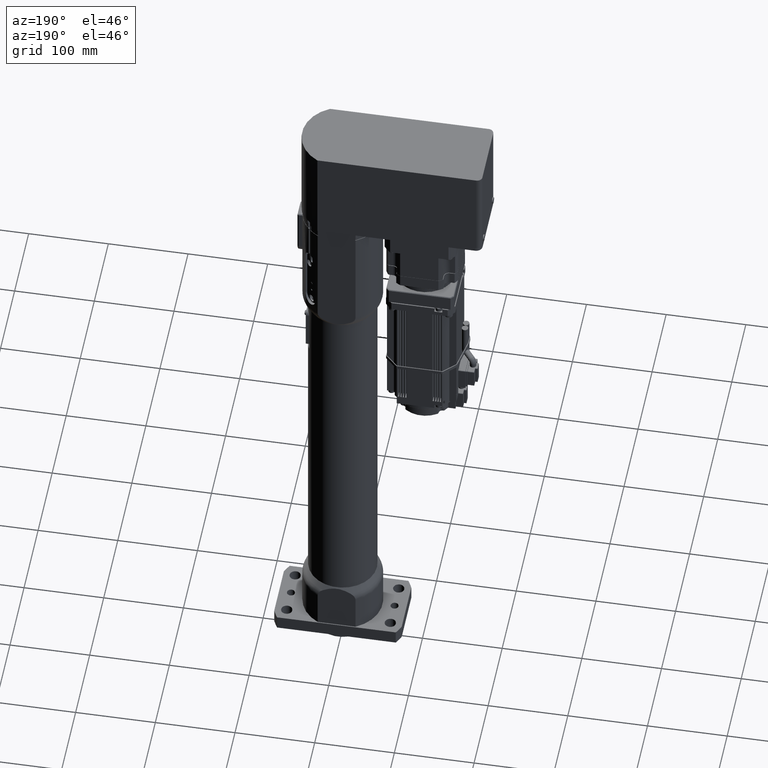
[diagram: clean part render]
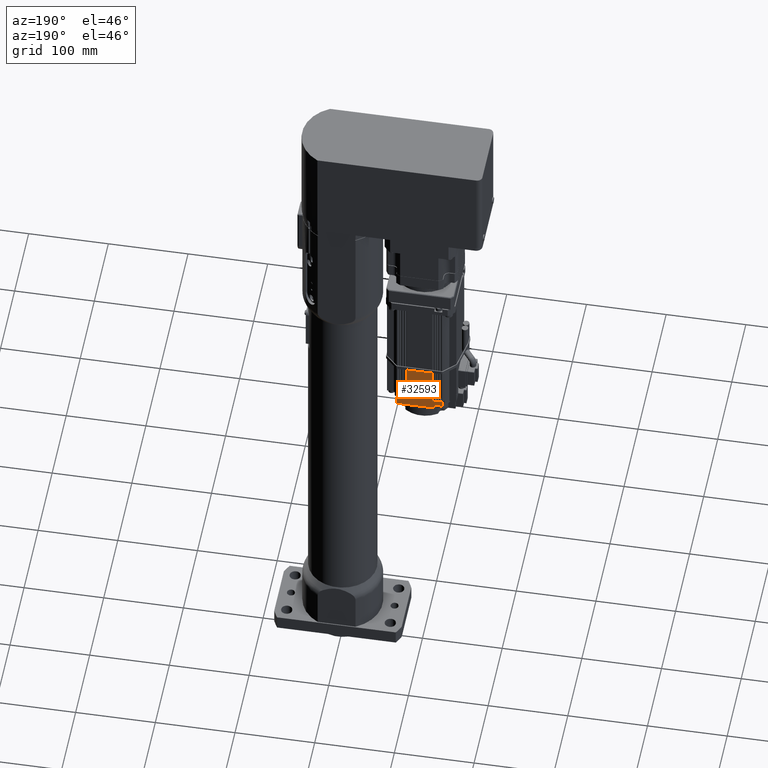
[diagram: same view with one face highlighted and labeled with its STEP entity id]
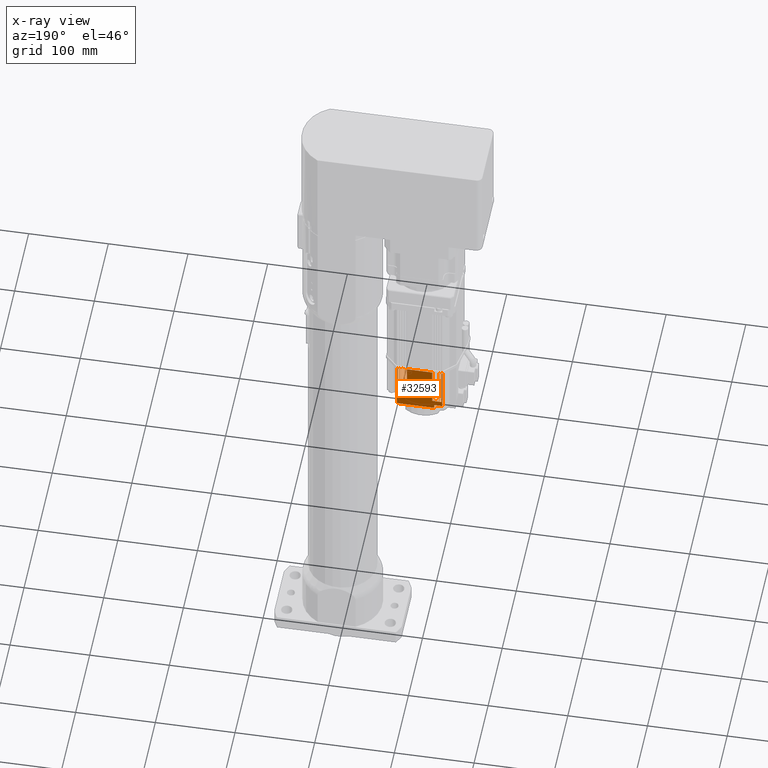
[diagram: x-ray of the same camera — body ghosted, the highlighted face saturated]
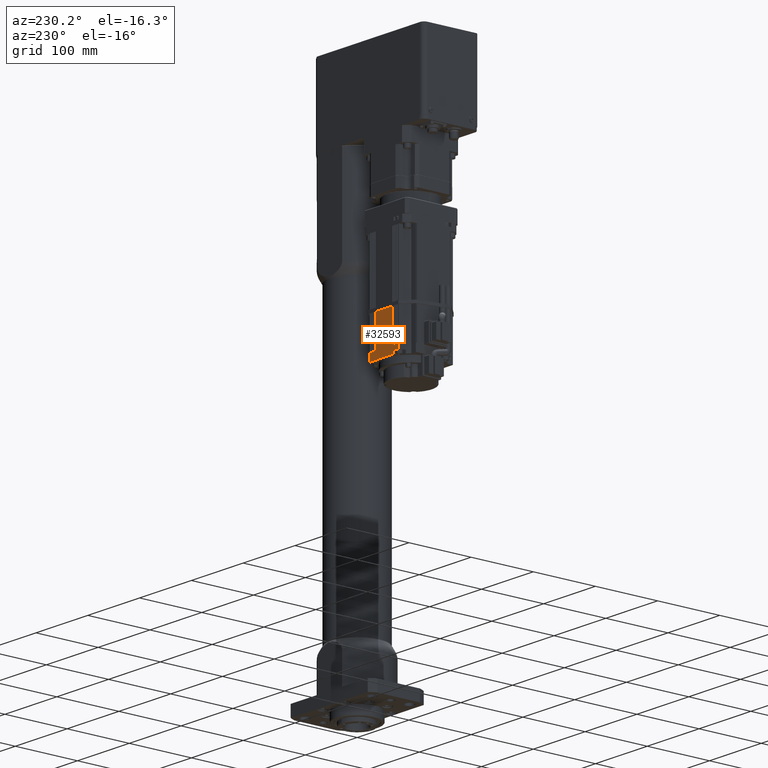
[diagram: same view with one face highlighted and labeled with its STEP entity id]
A machine part, auxiliary view. The second image highlights one B-rep face of the part: STEP entity #32593.
The next image is the same camera in x-ray: the body ghosted, the highlighted face saturated — about 0% of this face is hidden behind the body in this view.
A second angle (auxiliary view) of the same face is appended — the face is thin or edge-on in the first view.
In plain terms, the highlighted planar face has unit normal (0, 1, -0).
Its self-contained STEP definition (entity closure, byte-faithful):
#741=PLANE('',#34660);
#2211=FACE_OUTER_BOUND('',#4034,.T.);
#4034=EDGE_LOOP('',(#21815,#21816,#21817,#21818,#21819,#21820,#21821,#21822,
#21823,#21824,#21825,#21826,#21827,#21828,#21829,#21830,#21831,#21832,#21833,
#21834,#21835,#21836,#21837,#21838,#21839,#21840,#21841,#21842,#21843,#21844,
#21845,#21846,#21847,#21848,#21849,#21850,#21851,#21852));
#7829=LINE('',#49164,#10525);
#7830=LINE('',#49165,#10526);
#7831=LINE('',#49166,#10527);
#7832=LINE('',#49167,#10528);
#7833=LINE('',#49168,#10529);
#7834=LINE('',#49169,#10530);
#7835=LINE('',#49170,#10531);
#7836=LINE('',#49171,#10532);
#7837=LINE('',#49173,#10533);
#7873=LINE('',#49266,#10569);
#7874=LINE('',#49269,#10570);
#7875=LINE('',#49271,#10571);
#7876=LINE('',#49272,#10572);
#7877=LINE('',#49274,#10573);
#7878=LINE('',#49276,#10574);
#7879=LINE('',#49278,#10575);
#7880=LINE('',#49279,#10576);
#7881=LINE('',#49281,#10577);
#7882=LINE('',#49283,#10578);
#7883=LINE('',#49284,#10579);
#7884=LINE('',#49286,#10580);
#7885=LINE('',#49288,#10581);
#7886=LINE('',#49289,#10582);
#7887=LINE('',#49291,#10583);
#7888=LINE('',#49293,#10584);
#7889=LINE('',#49294,#10585);
#7890=LINE('',#49296,#10586);
#7891=LINE('',#49298,#10587);
#7892=LINE('',#49299,#10588);
#7893=LINE('',#49301,#10589);
#7894=LINE('',#49303,#10590);
#7895=LINE('',#49304,#10591);
#7896=LINE('',#49306,#10592);
#7897=LINE('',#49308,#10593);
#7898=LINE('',#49309,#10594);
#7899=LINE('',#49311,#10595);
#7900=LINE('',#49313,#10596);
#7901=LINE('',#49314,#10597);
#10525=VECTOR('',#38875,10.);
#10526=VECTOR('',#38876,10.);
#10527=VECTOR('',#38877,10.);
#10528=VECTOR('',#38878,10.);
#10529=VECTOR('',#38879,10.);
#10530=VECTOR('',#38880,10.);
#10531=VECTOR('',#38881,10.);
#10532=VECTOR('',#38882,10.);
#10533=VECTOR('',#38883,10.);
#10569=VECTOR('',#38935,10.);
#10570=VECTOR('',#38938,10.);
#10571=VECTOR('',#38939,10.);
#10572=VECTOR('',#38940,10.);
#10573=VECTOR('',#38941,10.);
#10574=VECTOR('',#38942,10.);
#10575=VECTOR('',#38943,10.);
#10576=VECTOR('',#38944,10.);
#10577=VECTOR('',#38945,10.);
#10578=VECTOR('',#38946,10.);
#10579=VECTOR('',#38947,10.);
#10580=VECTOR('',#38948,10.);
#10581=VECTOR('',#38949,10.);
#10582=VECTOR('',#38950,10.);
#10583=VECTOR('',#38951,10.);
#10584=VECTOR('',#38952,10.);
#10585=VECTOR('',#38953,10.);
#10586=VECTOR('',#38954,10.);
#10587=VECTOR('',#38955,10.);
#10588=VECTOR('',#38956,10.);
#10589=VECTOR('',#38957,10.);
#10590=VECTOR('',#38958,10.);
#10591=VECTOR('',#38959,10.);
#10592=VECTOR('',#38960,10.);
#10593=VECTOR('',#38961,10.);
#10594=VECTOR('',#38962,10.);
#10595=VECTOR('',#38963,10.);
#10596=VECTOR('',#38964,10.);
#10597=VECTOR('',#38965,10.);
#13146=VERTEX_POINT('',#48683);
#13148=VERTEX_POINT('',#48687);
#13150=VERTEX_POINT('',#48692);
#13152=VERTEX_POINT('',#48696);
#13154=VERTEX_POINT('',#48701);
#13156=VERTEX_POINT('',#48705);
#13158=VERTEX_POINT('',#48710);
#13160=VERTEX_POINT('',#48714);
#13162=VERTEX_POINT('',#48719);
#13164=VERTEX_POINT('',#48723);
#13166=VERTEX_POINT('',#48728);
#13168=VERTEX_POINT('',#48732);
#13170=VERTEX_POINT('',#48737);
#13172=VERTEX_POINT('',#48741);
#13173=VERTEX_POINT('',#48745);
#13175=VERTEX_POINT('',#48748);
#13321=VERTEX_POINT('',#49162);
#13322=VERTEX_POINT('',#49172);
#13353=VERTEX_POINT('',#49264);
#13354=VERTEX_POINT('',#49268);
#13355=VERTEX_POINT('',#49270);
#13356=VERTEX_POINT('',#49273);
#13357=VERTEX_POINT('',#49275);
#13358=VERTEX_POINT('',#49277);
#13359=VERTEX_POINT('',#49280);
#13360=VERTEX_POINT('',#49282);
#13361=VERTEX_POINT('',#49285);
#13362=VERTEX_POINT('',#49287);
#13363=VERTEX_POINT('',#49290);
#13364=VERTEX_POINT('',#49292);
#13365=VERTEX_POINT('',#49295);
#13366=VERTEX_POINT('',#49297);
#13367=VERTEX_POINT('',#49300);
#13368=VERTEX_POINT('',#49302);
#13369=VERTEX_POINT('',#49305);
#13370=VERTEX_POINT('',#49307);
#13371=VERTEX_POINT('',#49310);
#13372=VERTEX_POINT('',#49312);
#16584=EDGE_CURVE('',#13175,#13321,#7829,.T.);
#16585=EDGE_CURVE('',#13170,#13173,#7830,.T.);
#16586=EDGE_CURVE('',#13166,#13172,#7831,.T.);
#16587=EDGE_CURVE('',#13162,#13168,#7832,.T.);
#16588=EDGE_CURVE('',#13158,#13164,#7833,.T.);
#16589=EDGE_CURVE('',#13154,#13160,#7834,.T.);
#16590=EDGE_CURVE('',#13150,#13156,#7835,.T.);
#16591=EDGE_CURVE('',#13146,#13152,#7836,.T.);
#16592=EDGE_CURVE('',#13322,#13148,#7837,.T.);
#16635=EDGE_CURVE('',#13321,#13353,#7873,.T.);
#16636=EDGE_CURVE('',#13354,#13173,#7874,.T.);
#16637=EDGE_CURVE('',#13354,#13355,#7875,.T.);
#16638=EDGE_CURVE('',#13175,#13355,#7876,.T.);
#16639=EDGE_CURVE('',#13356,#13353,#7877,.T.);
#16640=EDGE_CURVE('',#13356,#13357,#7878,.T.);
#16641=EDGE_CURVE('',#13357,#13358,#7879,.T.);
#16642=EDGE_CURVE('',#13358,#13322,#7880,.T.);
#16643=EDGE_CURVE('',#13359,#13148,#7881,.T.);
#16644=EDGE_CURVE('',#13359,#13360,#7882,.T.);
#16645=EDGE_CURVE('',#13146,#13360,#7883,.T.);
#16646=EDGE_CURVE('',#13361,#13152,#7884,.T.);
#16647=EDGE_CURVE('',#13361,#13362,#7885,.T.);
#16648=EDGE_CURVE('',#13150,#13362,#7886,.T.);
#16649=EDGE_CURVE('',#13363,#13156,#7887,.T.);
#16650=EDGE_CURVE('',#13363,#13364,#7888,.T.);
#16651=EDGE_CURVE('',#13154,#13364,#7889,.T.);
#16652=EDGE_CURVE('',#13365,#13160,#7890,.T.);
#16653=EDGE_CURVE('',#13365,#13366,#7891,.T.);
#16654=EDGE_CURVE('',#13158,#13366,#7892,.T.);
#16655=EDGE_CURVE('',#13367,#13164,#7893,.T.);
#16656=EDGE_CURVE('',#13367,#13368,#7894,.T.);
#16657=EDGE_CURVE('',#13162,#13368,#7895,.T.);
#16658=EDGE_CURVE('',#13369,#13168,#7896,.T.);
#16659=EDGE_CURVE('',#13369,#13370,#7897,.T.);
#16660=EDGE_CURVE('',#13166,#13370,#7898,.T.);
#16661=EDGE_CURVE('',#13371,#13172,#7899,.T.);
#16662=EDGE_CURVE('',#13371,#13372,#7900,.T.);
#16663=EDGE_CURVE('',#13170,#13372,#7901,.T.);
#21815=ORIENTED_EDGE('',*,*,#16585,.T.);
#21816=ORIENTED_EDGE('',*,*,#16636,.F.);
#21817=ORIENTED_EDGE('',*,*,#16637,.T.);
#21818=ORIENTED_EDGE('',*,*,#16638,.F.);
#21819=ORIENTED_EDGE('',*,*,#16584,.T.);
#21820=ORIENTED_EDGE('',*,*,#16635,.T.);
#21821=ORIENTED_EDGE('',*,*,#16639,.F.);
#21822=ORIENTED_EDGE('',*,*,#16640,.T.);
#21823=ORIENTED_EDGE('',*,*,#16641,.T.);
#21824=ORIENTED_EDGE('',*,*,#16642,.T.);
#21825=ORIENTED_EDGE('',*,*,#16592,.T.);
#21826=ORIENTED_EDGE('',*,*,#16643,.F.);
#21827=ORIENTED_EDGE('',*,*,#16644,.T.);
#21828=ORIENTED_EDGE('',*,*,#16645,.F.);
#21829=ORIENTED_EDGE('',*,*,#16591,.T.);
#21830=ORIENTED_EDGE('',*,*,#16646,.F.);
#21831=ORIENTED_EDGE('',*,*,#16647,.T.);
#21832=ORIENTED_EDGE('',*,*,#16648,.F.);
#21833=ORIENTED_EDGE('',*,*,#16590,.T.);
#21834=ORIENTED_EDGE('',*,*,#16649,.F.);
#21835=ORIENTED_EDGE('',*,*,#16650,.T.);
#21836=ORIENTED_EDGE('',*,*,#16651,.F.);
#21837=ORIENTED_EDGE('',*,*,#16589,.T.);
#21838=ORIENTED_EDGE('',*,*,#16652,.F.);
#21839=ORIENTED_EDGE('',*,*,#16653,.T.);
#21840=ORIENTED_EDGE('',*,*,#16654,.F.);
#21841=ORIENTED_EDGE('',*,*,#16588,.T.);
#21842=ORIENTED_EDGE('',*,*,#16655,.F.);
#21843=ORIENTED_EDGE('',*,*,#16656,.T.);
#21844=ORIENTED_EDGE('',*,*,#16657,.F.);
#21845=ORIENTED_EDGE('',*,*,#16587,.T.);
#21846=ORIENTED_EDGE('',*,*,#16658,.F.);
#21847=ORIENTED_EDGE('',*,*,#16659,.T.);
#21848=ORIENTED_EDGE('',*,*,#16660,.F.);
#21849=ORIENTED_EDGE('',*,*,#16586,.T.);
#21850=ORIENTED_EDGE('',*,*,#16661,.F.);
#21851=ORIENTED_EDGE('',*,*,#16662,.T.);
#21852=ORIENTED_EDGE('',*,*,#16663,.F.);
#32593=ADVANCED_FACE('',(#2211),#741,.T.);
#34660=AXIS2_PLACEMENT_3D('',#49267,#38936,#38937);
#38875=DIRECTION('',(1.,-2.39794757605666E-14,-5.4831952850511E-14));
#38876=DIRECTION('',(1.,-2.39794757605666E-14,-5.4831952850511E-14));
#38877=DIRECTION('',(1.,-2.39794757605666E-14,-5.4831952850511E-14));
#38878=DIRECTION('',(1.,-2.39794757605666E-14,-5.4831952850511E-14));
#38879=DIRECTION('',(1.,-2.39794757605666E-14,-5.4831952850511E-14));
#38880=DIRECTION('',(1.,-2.39794757605666E-14,-5.4831952850511E-14));
#38881=DIRECTION('',(1.,-2.39794757605666E-14,-5.4831952850511E-14));
#38882=DIRECTION('',(1.,-2.39794757605666E-14,-5.4831952850511E-14));
#38883=DIRECTION('',(1.,-2.39794757605666E-14,-5.4831952850511E-14));
#38935=DIRECTION('',(-5.48319528505112E-14,-1.00722983923794E-14,-1.));
#38936=DIRECTION('center_axis',(2.39794757605661E-14,1.,-1.00722983923807E-14));
#38937=DIRECTION('ref_axis',(1.,-2.39794757605666E-14,-5.4831952850511E-14));
#38938=DIRECTION('',(5.48319528505112E-14,1.00722983923794E-14,1.));
#38939=DIRECTION('',(1.,-2.39794757605666E-14,-5.4831952850511E-14));
#38940=DIRECTION('',(-5.50049746205827E-14,-1.00722983923794E-14,-1.));
#38941=DIRECTION('',(1.,-2.39794757605666E-14,-5.4831952850511E-14));
#38942=DIRECTION('',(5.48319528505112E-14,1.00722983923794E-14,1.));
#38943=DIRECTION('',(-1.,2.39794757605666E-14,5.4831952850511E-14));
#38944=DIRECTION('',(5.48319528505112E-14,1.00722983923794E-14,1.));
#38945=DIRECTION('',(5.48752082930291E-14,1.00722983923794E-14,1.));
#38946=DIRECTION('',(1.,-2.39794757605666E-14,-5.4831952850511E-14));
#38947=DIRECTION('',(-5.48896267738684E-14,-1.00722983923794E-14,-1.));
#38948=DIRECTION('',(5.47886974079934E-14,1.00722983923794E-14,1.));
#38949=DIRECTION('',(1.,-2.39794757605666E-14,-5.4831952850511E-14));
#38950=DIRECTION('',(-5.48607898121898E-14,-1.00722983923794E-14,-1.));
#38951=DIRECTION('',(5.44282353870112E-14,1.00722983923794E-14,1.));
#38952=DIRECTION('',(1.,-2.39794757605666E-14,-5.4831952850511E-14));
#38953=DIRECTION('',(-5.44570723486897E-14,-1.00722983923794E-14,-1.));
#38954=DIRECTION('',(5.4572420195404E-14,1.00722983923794E-14,1.));
#38955=DIRECTION('',(1.,-2.39794757605666E-14,-5.4831952850511E-14));
#38956=DIRECTION('',(-5.47166050037969E-14,-1.00722983923794E-14,-1.));
#38957=DIRECTION('',(5.48896267738684E-14,1.00722983923794E-14,1.));
#38958=DIRECTION('',(1.,-2.39794757605666E-14,-5.4831952850511E-14));
#38959=DIRECTION('',(-5.49473006972255E-14,-1.00722983923794E-14,-1.));
#38960=DIRECTION('',(5.53510181607256E-14,1.00722983923794E-14,1.));
#38961=DIRECTION('',(1.,-2.39794757605666E-14,-5.4831952850511E-14));
#38962=DIRECTION('',(-5.53510181607256E-14,-1.00722983923794E-14,-1.));
#38963=DIRECTION('',(5.48896267738684E-14,1.00722983923794E-14,1.));
#38964=DIRECTION('',(1.,-2.39794757605666E-14,-5.4831952850511E-14));
#38965=DIRECTION('',(-5.48896267738684E-14,-1.00722983923794E-14,-1.));
#48683=CARTESIAN_POINT('',(-128.896933041038,43.4999999999771,487.000000000005));
#48687=CARTESIAN_POINT('',(-131.596933041038,43.4999999999771,487.000000000005));
#48692=CARTESIAN_POINT('',(-125.896933041038,43.499999999977,487.000000000005));
#48696=CARTESIAN_POINT('',(-128.596933041038,43.4999999999771,487.000000000005));
#48701=CARTESIAN_POINT('',(-122.896933041038,43.4999999999769,487.000000000004));
#48705=CARTESIAN_POINT('',(-125.596933041038,43.499999999977,487.000000000005));
#48710=CARTESIAN_POINT('',(-119.896933041038,43.4999999999769,487.000000000004));
#48714=CARTESIAN_POINT('',(-122.596933041038,43.4999999999769,487.000000000004));
#48719=CARTESIAN_POINT('',(-85.3969330410377,43.499999999976,487.000000000002));
#48723=CARTESIAN_POINT('',(-88.0969330410377,43.4999999999761,487.000000000003));
#48728=CARTESIAN_POINT('',(-82.3969330410377,43.499999999976,487.000000000002));
#48732=CARTESIAN_POINT('',(-85.0969330410377,43.499999999976,487.000000000002));
#48737=CARTESIAN_POINT('',(-79.3969330410377,43.4999999999759,487.000000000002));
#48741=CARTESIAN_POINT('',(-82.0969330410377,43.499999999976,487.000000000002));
#48745=CARTESIAN_POINT('',(-79.0969330410377,43.4999999999759,487.000000000002));
#48748=CARTESIAN_POINT('',(-76.3969330410377,43.4999999999758,487.000000000002));
#49162=CARTESIAN_POINT('',(-75.4969330410377,43.4999999999758,487.000000000002));
#49164=CARTESIAN_POINT('',(-123.63035301562,43.4999999999769,487.000000000004));
#49165=CARTESIAN_POINT('',(-123.63035301562,43.4999999999769,487.000000000004));
#49166=CARTESIAN_POINT('',(-123.63035301562,43.4999999999769,487.000000000004));
#49167=CARTESIAN_POINT('',(-123.63035301562,43.4999999999769,487.000000000004));
#49168=CARTESIAN_POINT('',(-123.63035301562,43.4999999999769,487.000000000004));
#49169=CARTESIAN_POINT('',(-123.63035301562,43.4999999999769,487.000000000004));
#49170=CARTESIAN_POINT('',(-123.63035301562,43.4999999999769,487.000000000004));
#49171=CARTESIAN_POINT('',(-123.63035301562,43.4999999999769,487.000000000004));
#49172=CARTESIAN_POINT('',(-132.496933041038,43.4999999999772,487.000000000005));
#49173=CARTESIAN_POINT('',(-123.63035301562,43.4999999999769,487.000000000004));
#49264=CARTESIAN_POINT('',(-75.4969330410411,43.4999999999752,424.500000000002));
#49266=CARTESIAN_POINT('',(-75.4969330410363,43.4999999999761,513.000000000002));
#49267=CARTESIAN_POINT('Origin',(-139.263772990196,43.4999999999785,601.500000000005));
#49268=CARTESIAN_POINT('',(-79.0969330410404,43.4999999999754,436.500000000002));
#49269=CARTESIAN_POINT('',(-79.0969330410317,43.499999999977,596.000000000002));
#49270=CARTESIAN_POINT('',(-76.3969330410405,43.4999999999753,436.500000000002));
#49271=CARTESIAN_POINT('',(-108.880353015623,43.4999999999761,436.500000000004));
#49272=CARTESIAN_POINT('',(-76.3969330410359,43.4999999999761,519.000000000002));
#49273=CARTESIAN_POINT('',(-122.496933041041,43.4999999999763,424.500000000004));
#49274=CARTESIAN_POINT('',(-139.263772990206,43.4999999999767,424.500000000005));
#49275=CARTESIAN_POINT('',(-122.496933041041,43.4999999999764,429.500000000004));
#49276=CARTESIAN_POINT('',(-122.496933041036,43.4999999999772,513.000000000004));
#49277=CARTESIAN_POINT('',(-132.496933041041,43.4999999999766,429.500000000005));
#49278=CARTESIAN_POINT('',(-133.76680260941,43.4999999999766,429.500000000005));
#49279=CARTESIAN_POINT('',(-132.496933041036,43.4999999999774,513.000000000005));
#49280=CARTESIAN_POINT('',(-131.59693304104,43.4999999999766,436.500000000005));
#49281=CARTESIAN_POINT('',(-131.596933041032,43.4999999999782,596.000000000005));
#49282=CARTESIAN_POINT('',(-128.89693304104,43.4999999999766,436.500000000005));
#49283=CARTESIAN_POINT('',(-135.130353015623,43.4999999999767,436.500000000005));
#49284=CARTESIAN_POINT('',(-128.896933041036,43.4999999999774,519.000000000005));
#49285=CARTESIAN_POINT('',(-128.59693304104,43.4999999999766,436.500000000005));
#49286=CARTESIAN_POINT('',(-128.596933041032,43.4999999999782,596.000000000005));
#49287=CARTESIAN_POINT('',(-125.89693304104,43.4999999999765,436.500000000005));
#49288=CARTESIAN_POINT('',(-133.630353015623,43.4999999999767,436.500000000005));
#49289=CARTESIAN_POINT('',(-125.896933041036,43.4999999999773,519.000000000005));
#49290=CARTESIAN_POINT('',(-125.59693304104,43.4999999999765,436.500000000005));
#49291=CARTESIAN_POINT('',(-125.596933041032,43.4999999999781,596.000000000005));
#49292=CARTESIAN_POINT('',(-122.89693304104,43.4999999999764,436.500000000004));
#49293=CARTESIAN_POINT('',(-132.130353015623,43.4999999999766,436.500000000005));
#49294=CARTESIAN_POINT('',(-122.896933041036,43.4999999999772,519.000000000004));
#49295=CARTESIAN_POINT('',(-122.59693304104,43.4999999999764,436.500000000004));
#49296=CARTESIAN_POINT('',(-122.596933041032,43.499999999978,596.000000000005));
#49297=CARTESIAN_POINT('',(-119.89693304104,43.4999999999764,436.500000000004));
#49298=CARTESIAN_POINT('',(-130.630353015623,43.4999999999766,436.500000000005));
#49299=CARTESIAN_POINT('',(-119.896933041036,43.4999999999772,519.000000000004));
#49300=CARTESIAN_POINT('',(-88.0969330410404,43.4999999999756,436.500000000003));
#49301=CARTESIAN_POINT('',(-88.0969330410317,43.4999999999772,596.000000000003));
#49302=CARTESIAN_POINT('',(-85.3969330410405,43.4999999999755,436.500000000002));
#49303=CARTESIAN_POINT('',(-113.380353015623,43.4999999999762,436.500000000004));
#49304=CARTESIAN_POINT('',(-85.3969330410359,43.4999999999764,519.000000000002));
#49305=CARTESIAN_POINT('',(-85.0969330410405,43.4999999999755,436.500000000002));
#49306=CARTESIAN_POINT('',(-85.0969330410317,43.4999999999771,596.000000000002));
#49307=CARTESIAN_POINT('',(-82.3969330410405,43.4999999999755,436.500000000002));
#49308=CARTESIAN_POINT('',(-111.880353015623,43.4999999999762,436.500000000004));
#49309=CARTESIAN_POINT('',(-82.3969330410359,43.4999999999763,519.000000000002));
#49310=CARTESIAN_POINT('',(-82.0969330410404,43.4999999999754,436.500000000002));
#49311=CARTESIAN_POINT('',(-82.0969330410317,43.4999999999771,596.000000000002));
#49312=CARTESIAN_POINT('',(-79.3969330410404,43.4999999999754,436.500000000002));
#49313=CARTESIAN_POINT('',(-110.380353015623,43.4999999999761,436.500000000004));
#49314=CARTESIAN_POINT('',(-79.3969330410359,43.4999999999762,519.000000000002));